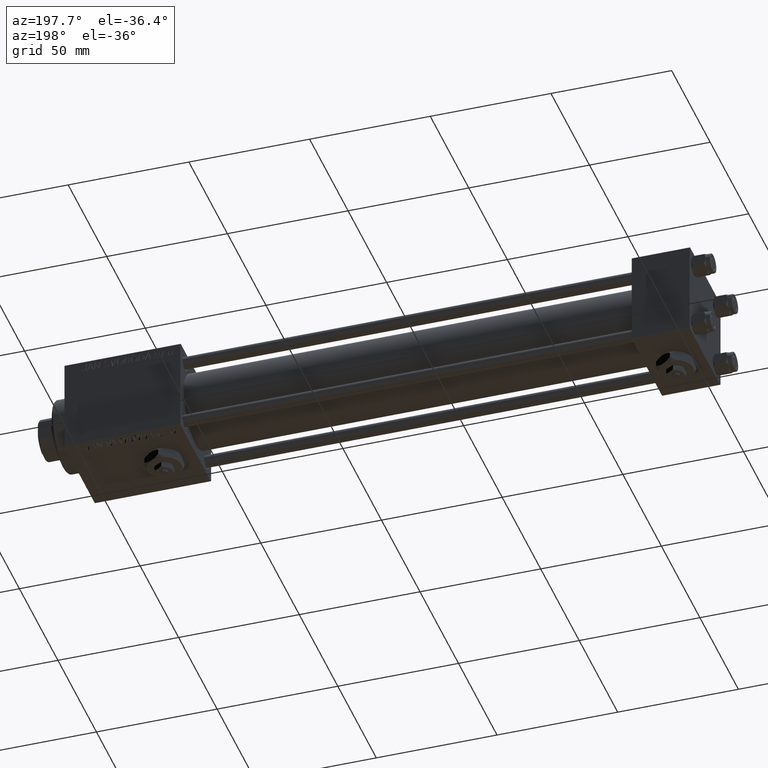
[diagram: clean part render]
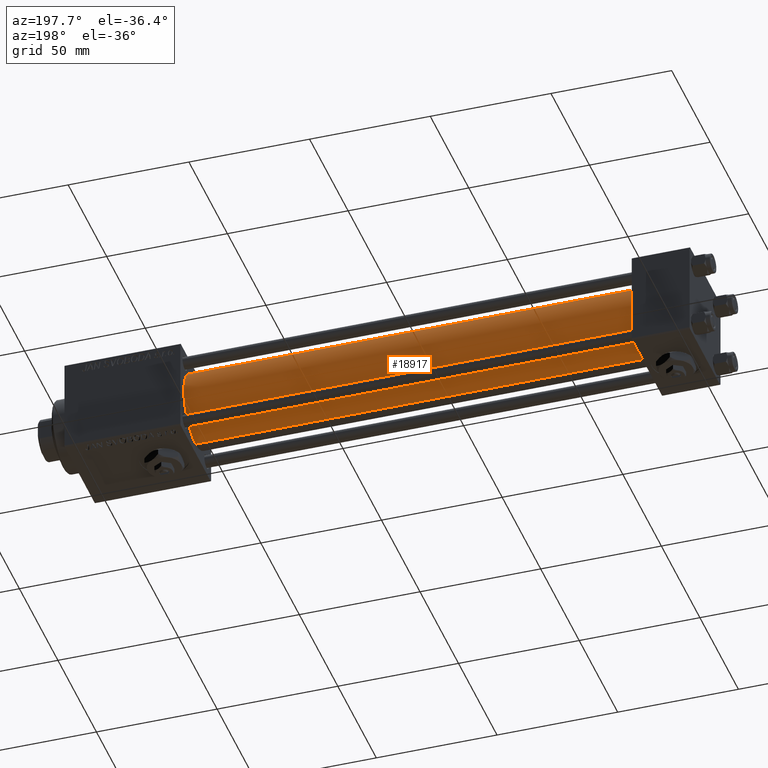
[diagram: same view with one face highlighted and labeled with its STEP entity id]
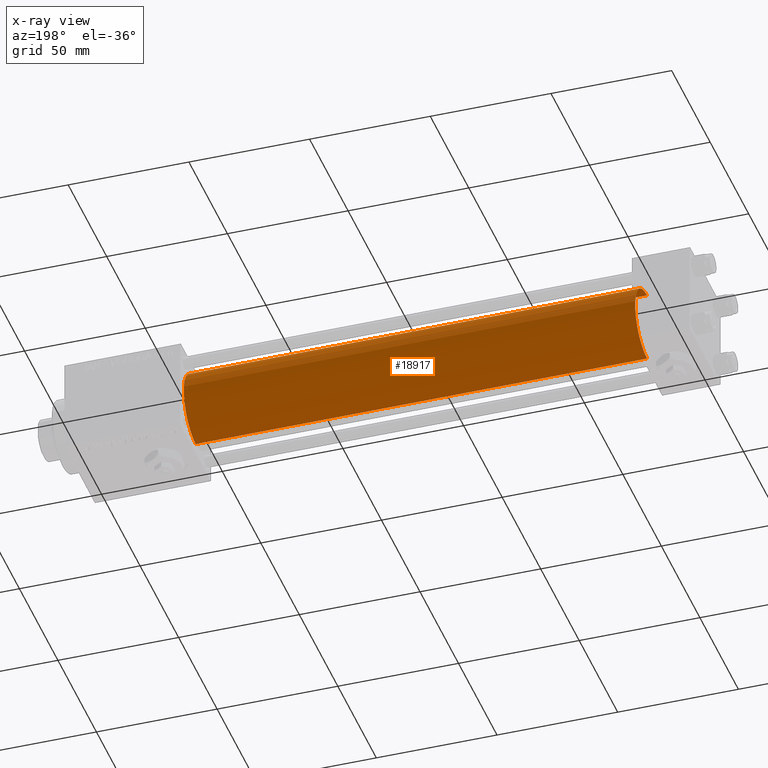
[diagram: x-ray of the same camera — body ghosted, the highlighted face saturated]
A machine part, auxiliary view. The second image highlights one B-rep face of the part: STEP entity #18917.
The next image is the same camera in x-ray: the body ghosted, the highlighted face saturated — about 0% of this face is hidden behind the body in this view.
In plain terms, the highlighted cylindrical surface (partial cylindrical patch) has radius 15.5 mm, axis along (-1, -0, -0).
Its self-contained STEP definition (entity closure, byte-faithful):
#211 = VERTEX_POINT ( 'NONE', #21246 ) ;
#443 = VECTOR ( 'NONE', #42918, 1000.000000000000000 ) ;
#1653 = DIRECTION ( 'NONE',  ( 1.000000000000000000, 0.000000000000000000, 0.000000000000000000 ) ) ;
#4665 = EDGE_CURVE ( 'NONE', #211, #13395, #27098, .T. ) ;
#5437 = CARTESIAN_POINT ( 'NONE',  ( 211.0000000000000000, -2.602085213965210642E-15, 0.000000000000000000 ) ) ;
#5879 = CARTESIAN_POINT ( 'NONE',  ( 211.0000000000000000, -2.602085213965210642E-15, 0.000000000000000000 ) ) ;
#5897 = CARTESIAN_POINT ( 'NONE',  ( 211.0000000000000000, -7.038826752868131828E-16, -15.50000000000000000 ) ) ;
#6833 = CARTESIAN_POINT ( 'NONE',  ( 211.0000000000000000, -2.602085213965210642E-15, 15.50000000000000000 ) ) ;
#9320 = LINE ( 'NONE', #5897, #34341 ) ;
#10949 = ORIENTED_EDGE ( 'NONE', *, *, #18393, .T. ) ;
#11477 = AXIS2_PLACEMENT_3D ( 'NONE', #5879, #1653, #12739 ) ;
#12586 = VERTEX_POINT ( 'NONE', #40975 ) ;
#12603 = DIRECTION ( 'NONE',  ( 0.000000000000000000, 0.000000000000000000, 1.000000000000000000 ) ) ;
#12710 = CIRCLE ( 'NONE', #47155, 15.50000000000000000 ) ;
#12739 = DIRECTION ( 'NONE',  ( 0.000000000000000000, 0.000000000000000000, -1.000000000000000000 ) ) ;
#13395 = VERTEX_POINT ( 'NONE', #34323 ) ;
#18393 = EDGE_CURVE ( 'NONE', #42121, #13395, #12710, .T. ) ;
#18917 = ADVANCED_FACE ( 'NONE', ( #29393 ), #25190, .T. ) ;
#21246 = CARTESIAN_POINT ( 'NONE',  ( 211.0000000000000000, -2.602085213965210642E-15, 15.50000000000000000 ) ) ;
#21274 = DIRECTION ( 'NONE',  ( 1.000000000000000000, 0.000000000000000000, 0.000000000000000000 ) ) ;
#23729 = EDGE_LOOP ( 'NONE', ( #29308, #50431, #10949, #33603 ) ) ;
#25190 = CYLINDRICAL_SURFACE ( 'NONE', #32874, 15.50000000000000000 ) ;
#25452 = DIRECTION ( 'NONE',  ( -1.000000000000000000, -0.000000000000000000, -0.000000000000000000 ) ) ;
#26631 = CIRCLE ( 'NONE', #11477, 15.50000000000000000 ) ;
#26917 = CARTESIAN_POINT ( 'NONE',  ( 23.99999999999999289, -7.038826752868131828E-16, -15.50000000000000000 ) ) ;
#27098 = LINE ( 'NONE', #6833, #443 ) ;
#29308 = ORIENTED_EDGE ( 'NONE', *, *, #42065, .F. ) ;
#29393 = FACE_OUTER_BOUND ( 'NONE', #23729, .T. ) ;
#32874 = AXIS2_PLACEMENT_3D ( 'NONE', #5437, #25452, #37296 ) ;
#33603 = ORIENTED_EDGE ( 'NONE', *, *, #4665, .F. ) ;
#34323 = CARTESIAN_POINT ( 'NONE',  ( 23.99999999999999289, -2.602085213965210642E-15, 15.50000000000000000 ) ) ;
#34341 = VECTOR ( 'NONE', #49329, 1000.000000000000000 ) ;
#36804 = CARTESIAN_POINT ( 'NONE',  ( 23.99999999999999289, -2.602085213965210642E-15, 0.000000000000000000 ) ) ;
#37296 = DIRECTION ( 'NONE',  ( 0.000000000000000000, 0.000000000000000000, 1.000000000000000000 ) ) ;
#40975 = CARTESIAN_POINT ( 'NONE',  ( 211.0000000000000000, -7.038826752868131828E-16, -15.50000000000000000 ) ) ;
#42065 = EDGE_CURVE ( 'NONE', #12586, #211, #26631, .T. ) ;
#42121 = VERTEX_POINT ( 'NONE', #26917 ) ;
#42918 = DIRECTION ( 'NONE',  ( -1.000000000000000000, -0.000000000000000000, -0.000000000000000000 ) ) ;
#47155 = AXIS2_PLACEMENT_3D ( 'NONE', #36804, #21274, #12603 ) ;
#49282 = EDGE_CURVE ( 'NONE', #12586, #42121, #9320, .T. ) ;
#49329 = DIRECTION ( 'NONE',  ( -1.000000000000000000, -0.000000000000000000, -0.000000000000000000 ) ) ;
#50431 = ORIENTED_EDGE ( 'NONE', *, *, #49282, .T. ) ;